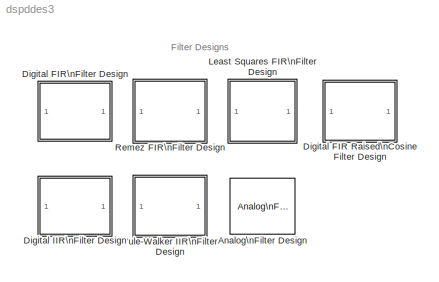
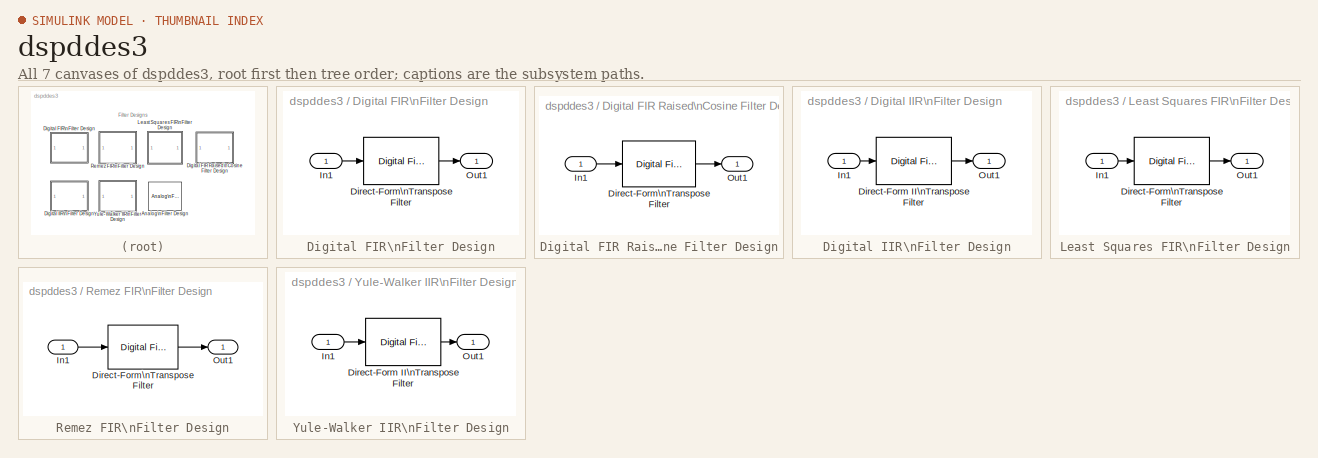
[diagram: thumbnail index - all 7 canvases of the model, root first then tree order]
MODEL dspddes3
KIND library
BLOCK [Reference] Analog\nFilter Design  REF=dsparch4/Analog\nFilter Design
  N = 8
  Ports = [1, 1]
  Rp = 2
  Rs = 40
  SourceBlock = dsparch4/Analog\nFilter Design
  SourceType = Analog Filter Design
  Whi = 80
  Wlo = 30
  filttype = Lowpass
  method = Butterworth
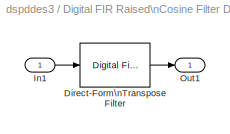
BLOCK [SubSystem] Digital FIR Raised\nCosine Filter Design
  MaskCallbackString = |||dspblkfirrcos2|||dspblkfirrcos2|||
  MaskDescription = Linear phase digital FIR lowpass raised cosine filter.
  MaskDisplay = plot(w,h);\ntext(.05,.9,str);
  MaskEnableString = on,on,on,on,off,on,on,off,off,on
  MaskHelp = web(dspbhelp);
  MaskIconFrame = on
  MaskIconOpaque = on
  MaskIconRotate = none
  MaskIconUnits = normalized
  MaskInitialization = [str,h,w,b]= dspblkfirrcos2('design',filter_order,upper_cutoff_freq,rolloff_type,transition_bw,rolloff_factor, window_type, Rs, enable_sqrt_design, Kbeta);\n\n
  MaskPromptString = Filter order:|Upper cutoff frequency (0 to 1):|Square-root raised cosine filter|Design method:|Transition bandwidth (0 < Df < 1):|Rolloff factor (0 to 1):|Window type:|Stopband attenuation in dB:|Beta:|Initial conditions:
  MaskSelfModifiable = on
  MaskStyleString = edit,edit,checkbox,popup(Transition bandwidth|Rolloff factor),edit,edit,popup(Bartlett|Blackman|Boxcar|Chebyshev|Hamming|Hann|Hanning|Kaiser|Triangular),edit,edit,edit
  MaskToolTipString = on,on,on,on,on,on,on,on,on,on
  MaskTunableValueString = off,on,on,on,on,on,on,on,on,on
  MaskType = Digital FIR Raised Cosine Filter Design
  MaskValueString = 63|0.5|on|Rolloff factor|0.4|0.6|Boxcar|5|10|0
  MaskVarAliasString = ,,,,,,,,,
  MaskVariables = filter_order=@1;upper_cutoff_freq=@2;enable_sqrt_design=@3;rolloff_type=@4;transition_bw=@5;rolloff_factor=@6;window_type=@7;Rs=@8;Kbeta=@9;InitCond=@10;
  MaskVisibilityString = on,on,on,on,off,on,on,on,on,on
  Ports = [1, 1]
  TreatAsAtomicUnit = off
BLOCK [Reference] Digital FIR Raised\nCosine Filter Design/Direct-Form\nTranspose Filter  REF=dsparch4/Digital Filter
  AllPoleFiltStruct = Direct form
  BiQuadCoeffs = [1 0.3 0.4 1 0.1 0.2]
  CoeffSource = Specify via dialog
  DenCoeffs = 1
  FIRFiltStruct = Direct form transposed
  FiltPerSampPopup = One filter per frame
  IC = InitCond
  ICden = 0
  ICnum = 0
  IIRFiltStruct = Direct form II transposed
  LatticeCoeffs = [0.2 0.4]
  NumCoeffs = b
  Ports = [1, 1]
  SourceBlock = dsparch4/Digital Filter
  SourceType = Digital Filter
  TypePopup = FIR (all zeros)
  denIgnore = on
BLOCK [Inport] Digital FIR Raised\nCosine Filter Design/In1
BLOCK [Outport] Digital FIR Raised\nCosine Filter Design/Out1
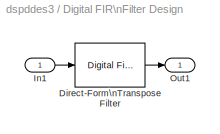
BLOCK [SubSystem] Digital FIR\nFilter Design
  MaskCallbackString = dspblkfir2||||||||dspblkfir2||
  MaskDescription = Implements various window-based FIR filter designs using the Signal Processing Toolbox's \"fir1\" and \"fir2\" filter design commands.  The gain at each \"cutoff frequency\" is the average of the gains in the adjacent bands (usually 0.5).
  MaskDisplay = plot(w,h); text(.05,.9,str);\n
  MaskEnableString = on,on,on,on,on,on,on,on,on,off,off
  MaskHelp = web(dspbhelp);
  MaskIconFrame = on
  MaskIconOpaque = on
  MaskIconRotate = none
  MaskIconUnits = normalized
  MaskInitialization = [b,h,w,str]=dspblkfir2('design',filttype,N,Wlo,Whi,W0,g0,W1,gains,wintype,Rs, Kbeta);
  MaskPromptString = Filter type:|Filter order:|Cutoff frequency (0 to 1):|Upper cutoff frequency:|Cutoff frequency vector (0 < f < 1):|Gain in the first band:|Frequency vector (including 0 and 1):|Gains at these frequencies:|Window type:|Stopband attenuation in dB:|Beta:
  MaskSelfModifiable = on
  MaskStyleString = popup(Lowpass|Highpass|Bandpass|Bandstop|Multiband|Arbitrary Shape (fir2)),edit,edit,edit,edit,popup(0|1),edit,edit,popup(Bartlett|Blackman|Boxcar|Chebyshev|Hamming|Hann|Hanning|Kaiser|Triangular),edit,edit
  MaskToolTipString = on,on,on,on,on,on,on,on,on,on,on
  MaskTunableValueString = on,off,on,on,on,on,on,on,on,on,on
  MaskType = Digital FIR Filter Design
  MaskValueString = Lowpass|22|0.4|0.6|[.2 .5 .8]|1|[0 .2 .3 .6 .8 1]|[1 .5 0 0 1 .5]|Hamming|10|5
  MaskVarAliasString = ,,,,,,,,,,
  MaskVariables = filttype=&1;N=@2;Wlo=@3;Whi=@4;W0=@5;g0=@6;W1=@7;gains=@8;wintype=&9;Rs=@10;Kbeta=@11;
  MaskVisibilityString = on,on,on,off,off,off,off,off,on,on,on
  Ports = [1, 1]
  TreatAsAtomicUnit = off
BLOCK [Reference] Digital FIR\nFilter Design/Direct-Form\nTranspose Filter  REF=dsparch4/Digital Filter
  AllPoleFiltStruct = Direct form
  BiQuadCoeffs = [1 0.3 0.4 1 0.1 0.2]
  CoeffSource = Specify via dialog
  DenCoeffs = 1
  FIRFiltStruct = Direct form transposed
  FiltPerSampPopup = One filter per frame
  IC = 0
  ICden = 0
  ICnum = 0
  IIRFiltStruct = Direct form II transposed
  LatticeCoeffs = [0.2 0.4]
  NumCoeffs = b
  Ports = [1, 1]
  SourceBlock = dsparch4/Digital Filter
  SourceType = Digital Filter
  TypePopup = FIR (all zeros)
  denIgnore = on
BLOCK [Inport] Digital FIR\nFilter Design/In1
BLOCK [Outport] Digital FIR\nFilter Design/Out1
  InitialOutput = 0
BLOCK [SubSystem] Digital IIR\nFilter Design
  MaskCallbackString = dspblkiir2|dspblkiir2|||||
  MaskDescription = Design one of several standard IIR filters, implemented in direct form.
  MaskDisplay = plot(w,h); text(.05,.9,str);\n
  MaskEnableString = on,on,on,on,on,on,on
  MaskHelp = web(dspbhelp);
  MaskIconFrame = on
  MaskIconOpaque = on
  MaskIconRotate = none
  MaskIconUnits = normalized
  MaskInitialization = [b,a,h,w,str] = dspblkiir2('design',method,filttype,N,...\n                                              Wlo,Whi,Rp,Rs);\n
  MaskPromptString = Design method:|Filter type:|Filter order:|Passband edge frequency (0 to 1):|Should not be visible!|Passband ripple in dB:|Stopband attenuation in dB:
  MaskSelfModifiable = on
  MaskStyleString = popup(Butterworth|Chebyshev I|Chebyshev II|Elliptic),popup(Lowpass|Highpass|Bandpass|Bandstop),edit,edit,edit,edit,edit
  MaskToolTipString = on,on,on,on,on,on,on
  MaskTunableValueString = on,on,off,on,on,on,on
  MaskType = Digital IIR Filter Design
  MaskValueString = Butterworth|Lowpass|4|0.4|0.6|2|20
  MaskVarAliasString = ,,,,,,
  MaskVariables = method=&1;filttype=&2;N=@3;Wlo=@4;Whi=@5;Rp=@6;Rs=@7;
  MaskVisibilityString = on,on,on,on,off,off,off
  Ports = [1, 1]
  TreatAsAtomicUnit = off
BLOCK [Reference] Digital IIR\nFilter Design/Direct-Form II\nTranspose Filter  REF=dsparch4/Digital Filter
  AllPoleFiltStruct = Direct form
  BiQuadCoeffs = [1 0.3 0.4 1 0.1 0.2]
  CoeffSource = Specify via dialog
  DenCoeffs = a
  FIRFiltStruct = Direct form transposed
  FiltPerSampPopup = One filter per frame
  IC = 0
  ICden = 0
  ICnum = 0
  IIRFiltStruct = Direct form II transposed
  LatticeCoeffs = [0.2 0.4]
  NumCoeffs = b
  Ports = [1, 1]
  SourceBlock = dsparch4/Digital Filter
  SourceType = Digital Filter
  TypePopup = IIR (poles & zeros)
  denIgnore = on
BLOCK [Inport] Digital IIR\nFilter Design/In1
BLOCK [Outport] Digital IIR\nFilter Design/Out1
  InitialOutput = 0
BLOCK [SubSystem] Least Squares FIR\nFilter Design
  MaskCallbackString = ||||
  MaskDescription = Least-squares linear phase FIR filter.
  MaskDisplay = plot(w,h); text(.05,.9,str);
  MaskEnableString = on,on,on,on,on
  MaskHelp = web(dspbhelp);
  MaskIconFrame = on
  MaskIconOpaque = on
  MaskIconRotate = none
  MaskIconUnits = normalized
  MaskInitialization = [b,h,w,str] = dspblkfirls2('design',filttype,N,F,A,W);\n
  MaskPromptString = Filter type:|Filter order:|Band-edge frequency vector (including 0 and 1):|Gains at these frequencies:|Weights (one per band):
  MaskSelfModifiable = on
  MaskStyleString = popup(Multiband|Hilbert Transformer|Differentiator),edit,edit,edit,edit
  MaskToolTipString = on,on,on,on,on
  MaskTunableValueString = on,off,on,on,on
  MaskType = Least Squares FIR Filter Design
  MaskValueString = Multiband|12|[0 0.3 0.6 1]|[0 0 1 1]|[1 1]
  MaskVarAliasString = ,,,,
  MaskVariables = filttype=@1;N=@2;F=@3;A=@4;W=@5;
  MaskVisibilityString = on,on,on,on,on
  Ports = [1, 1]
  TreatAsAtomicUnit = off
BLOCK [Reference] Least Squares FIR\nFilter Design/Direct-Form\nTranspose Filter  REF=dsparch4/Digital Filter
  AllPoleFiltStruct = Direct form
  BiQuadCoeffs = [1 0.3 0.4 1 0.1 0.2]
  CoeffSource = Specify via dialog
  DenCoeffs = 1
  FIRFiltStruct = Direct form transposed
  FiltPerSampPopup = One filter per frame
  IC = 0
  ICden = 0
  ICnum = 0
  IIRFiltStruct = Direct form II transposed
  LatticeCoeffs = [0.2 0.4]
  NumCoeffs = b
  Ports = [1, 1]
  SourceBlock = dsparch4/Digital Filter
  SourceType = Digital Filter
  TypePopup = FIR (all zeros)
  denIgnore = on
BLOCK [Inport] Least Squares FIR\nFilter Design/In1
BLOCK [Outport] Least Squares FIR\nFilter Design/Out1
  InitialOutput = 0
BLOCK [SubSystem] Remez FIR\nFilter Design
  MaskCallbackString = ||||
  MaskDescription = Parks-McClellan linear phase FIR filter.
  MaskDisplay = plot(w,h); text(.05,.9,str);
  MaskEnableString = on,on,on,on,on
  MaskHelp = web(dspbhelp);
  MaskIconFrame = on
  MaskIconOpaque = on
  MaskIconRotate = none
  MaskIconUnits = normalized
  MaskInitialization = [b,h,w,str] = dspblkremez2('design', filttype,N,F,A,W);\n\n
  MaskPromptString = Filter type:|Band-edge frequency vector (including 0 and 1):|Gains at these frequencies:|Weights (one per band):|Filter order:
  MaskSelfModifiable = on
  MaskStyleString = popup(Multiband|Hilbert Transformer|Differentiator),edit,edit,edit,edit
  MaskToolTipString = on,on,on,on,on
  MaskTunableValueString = on,on,on,on,off
  MaskType = Remez FIR Filter Design
  MaskValueString = Multiband|[0 0.4 0.5 1]|[1 1 0 0]|[1 1]|23
  MaskVarAliasString = ,,,,
  MaskVariables = filttype=@1;F=@2;A=@3;W=@4;N=@5;
  MaskVisibilityString = on,on,on,on,on
  Ports = [1, 1]
  TreatAsAtomicUnit = off
BLOCK [Reference] Remez FIR\nFilter Design/Direct-Form\nTranspose Filter  REF=dsparch4/Digital Filter
  AllPoleFiltStruct = Direct form
  BiQuadCoeffs = [1 0.3 0.4 1 0.1 0.2]
  CoeffSource = Specify via dialog
  DenCoeffs = 1
  FIRFiltStruct = Direct form transposed
  FiltPerSampPopup = One filter per frame
  IC = 0
  ICden = 0
  ICnum = 0
  IIRFiltStruct = Direct form II transposed
  LatticeCoeffs = [0.2 0.4]
  NumCoeffs = b
  Ports = [1, 1]
  SourceBlock = dsparch4/Digital Filter
  SourceType = Digital Filter
  TypePopup = FIR (all zeros)
  denIgnore = on
BLOCK [Inport] Remez FIR\nFilter Design/In1
BLOCK [Outport] Remez FIR\nFilter Design/Out1
  InitialOutput = 0
BLOCK [SubSystem] Yule-Walker IIR\nFilter Design
  MaskCallbackString = ||
  MaskDescription = Yule-Walker IIR filter design.
  MaskDisplay = plot(w,h); text(.05,.9,str);
  MaskEnableString = on,on,on
  MaskHelp = web(dspbhelp);
  MaskIconFrame = on
  MaskIconOpaque = on
  MaskIconRotate = none
  MaskIconUnits = normalized
  MaskInitialization = [b,a,h,w,str] = dspblkyule2('design', N,F,A);\n
  MaskPromptString = Filter order:|Band-edge frequency vector (including 0 and 1):|Magnitudes at these frequencies:
  MaskSelfModifiable = on
  MaskStyleString = edit,edit,edit
  MaskToolTipString = on,on,on
  MaskTunableValueString = off,on,on
  MaskType = Yule-Walker IIR Filter Design
  MaskValueString = 8|[0 .4 .6 1]|[1 1 0 0]
  MaskVarAliasString = ,,
  MaskVariables = N=@1;F=@2;A=@3;
  MaskVisibilityString = on,on,on
  Ports = [1, 1]
  TreatAsAtomicUnit = off
BLOCK [Reference] Yule-Walker IIR\nFilter Design/Direct-Form II\nTranspose Filter  REF=dsparch4/Digital Filter
  AllPoleFiltStruct = Direct form
  BiQuadCoeffs = [1 0.3 0.4 1 0.1 0.2]
  CoeffSource = Specify via dialog
  DenCoeffs = a
  FIRFiltStruct = Direct form transposed
  FiltPerSampPopup = One filter per frame
  IC = 0
  ICden = 0
  ICnum = 0
  IIRFiltStruct = Direct form II transposed
  LatticeCoeffs = [0.2 0.4]
  NumCoeffs = b
  Ports = [1, 1]
  SourceBlock = dsparch4/Digital Filter
  SourceType = Digital Filter
  TypePopup = IIR (poles & zeros)
  denIgnore = on
BLOCK [Inport] Yule-Walker IIR\nFilter Design/In1
BLOCK [Outport] Yule-Walker IIR\nFilter Design/Out1
  InitialOutput = 0
ANNOTATION (root): Filter Designs
LINE Digital FIR Raised\nCosine Filter Design/Direct-Form\nTranspose Filter:1 -> Digital FIR Raised\nCosine Filter Design/Out1:1
LINE Digital FIR Raised\nCosine Filter Design/In1:1 -> Digital FIR Raised\nCosine Filter Design/Direct-Form\nTranspose Filter:1
LINE Digital FIR\nFilter Design/Direct-Form\nTranspose Filter:1 -> Digital FIR\nFilter Design/Out1:1
LINE Digital FIR\nFilter Design/In1:1 -> Digital FIR\nFilter Design/Direct-Form\nTranspose Filter:1
LINE Digital IIR\nFilter Design/Direct-Form II\nTranspose Filter:1 -> Digital IIR\nFilter Design/Out1:1
LINE Digital IIR\nFilter Design/In1:1 -> Digital IIR\nFilter Design/Direct-Form II\nTranspose Filter:1
LINE Least Squares FIR\nFilter Design/Direct-Form\nTranspose Filter:1 -> Least Squares FIR\nFilter Design/Out1:1
LINE Least Squares FIR\nFilter Design/In1:1 -> Least Squares FIR\nFilter Design/Direct-Form\nTranspose Filter:1
LINE Remez FIR\nFilter Design/Direct-Form\nTranspose Filter:1 -> Remez FIR\nFilter Design/Out1:1
LINE Remez FIR\nFilter Design/In1:1 -> Remez FIR\nFilter Design/Direct-Form\nTranspose Filter:1
LINE Yule-Walker IIR\nFilter Design/Direct-Form II\nTranspose Filter:1 -> Yule-Walker IIR\nFilter Design/Out1:1
LINE Yule-Walker IIR\nFilter Design/In1:1 -> Yule-Walker IIR\nFilter Design/Direct-Form II\nTranspose Filter:1
